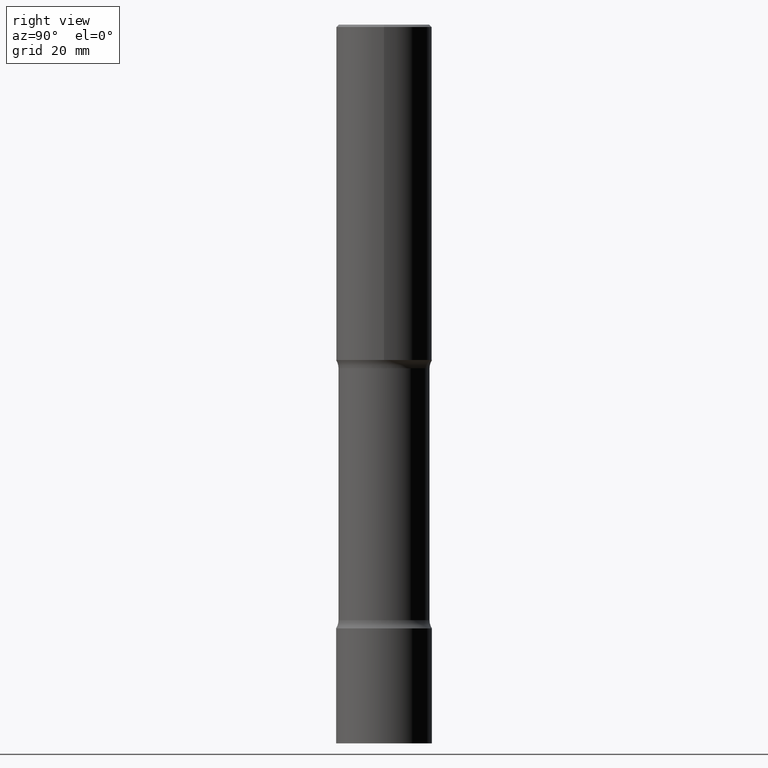
[diagram: clean part render]
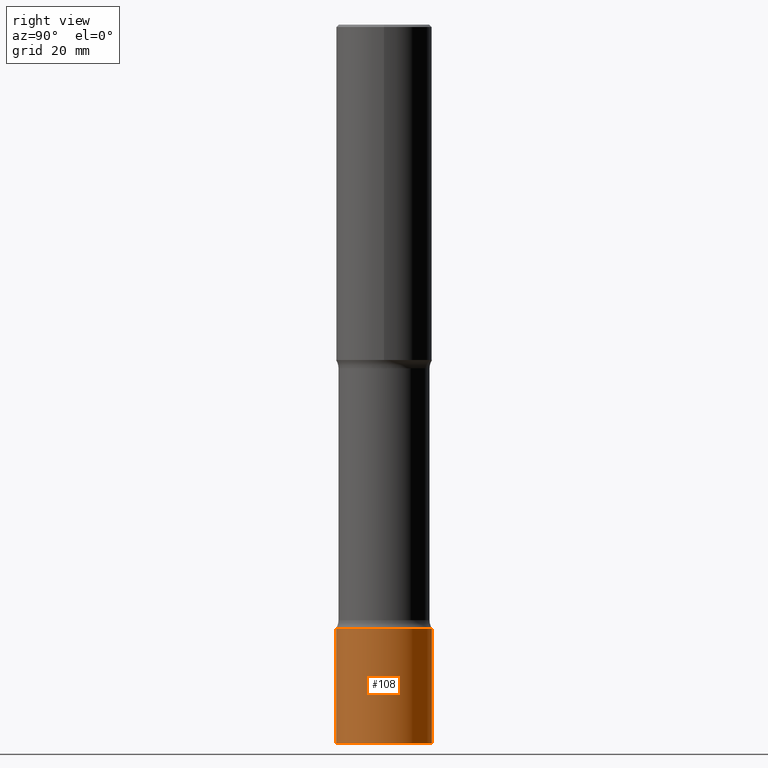
[diagram: same view with one face highlighted and labeled with its STEP entity id]
A machine part, right view. The second image highlights one B-rep face of the part: STEP entity #108.
In plain terms, the highlighted cylindrical surface (partial cylindrical patch) has radius 10 mm, axis along (-0, 0, 1).
Its self-contained STEP definition (entity closure, byte-faithful):
#1 = VERTEX_POINT ( 'NONE', #52 ) ;
#6 = DIRECTION ( 'NONE',  ( -2.445783037014241883E-29, 3.491031342410958513E-15, 1.000000000000000000 ) ) ;
#23 = LINE ( 'NONE', #261, #498 ) ;
#32 = DIRECTION ( 'NONE',  ( -6.982962677686265922E-15, -1.000000000000000000, 3.491031342410958908E-15 ) ) ;
#36 = CARTESIAN_POINT ( 'NONE',  ( 1.444357172508760156E-28, -2.061628559260791379E-14, -5.905499999999999972 ) ) ;
#46 = EDGE_LOOP ( 'NONE', ( #394, #165, #429, #95 ) ) ;
#52 = CARTESIAN_POINT ( 'NONE',  ( -2.749192406204960943E-15, -0.3937000000000173139, -4.960599999999998566 ) ) ;
#73 = DIRECTION ( 'NONE',  ( -2.445783037014241883E-29, 3.491031342410958908E-15, 1.000000000000000000 ) ) ;
#83 = AXIS2_PLACEMENT_3D ( 'NONE', #453, #492, #32 ) ;
#86 = VERTEX_POINT ( 'NONE', #377 ) ;
#90 = CARTESIAN_POINT ( 'NONE',  ( -2.749192406204937672E-15, -0.3937000000000205890, -5.905499999999998195 ) ) ;
#92 = AXIS2_PLACEMENT_3D ( 'NONE', #349, #309, #351 ) ;
#95 = ORIENTED_EDGE ( 'NONE', *, *, #96, .F. ) ;
#96 = EDGE_CURVE ( 'NONE', #442, #1, #23, .T. ) ;
#105 = CARTESIAN_POINT ( 'NONE',  ( 2.797406750687658359E-15, 0.3936999999999826194, -4.960600000000000342 ) ) ;
#108 = ADVANCED_FACE ( 'NONE', ( #256 ), #171, .T. ) ;
#111 = DIRECTION ( 'NONE',  ( -6.982962677686265922E-15, -1.000000000000000000, 2.775563112689117089E-15 ) ) ;
#149 = VECTOR ( 'NONE', #6, 39.37007874015748143 ) ;
#165 = ORIENTED_EDGE ( 'NONE', *, *, #380, .T. ) ;
#171 = CYLINDRICAL_SURFACE ( 'NONE', #83, 0.3936999999999999389 ) ;
#173 = DIRECTION ( 'NONE',  ( -2.445783037014241883E-29, 3.491031342410958513E-15, 1.000000000000000000 ) ) ;
#225 = LINE ( 'NONE', #264, #149 ) ;
#243 = VERTEX_POINT ( 'NONE', #105 ) ;
#256 = FACE_OUTER_BOUND ( 'NONE', #46, .T. ) ;
#261 = CARTESIAN_POINT ( 'NONE',  ( -2.749192406205082428E-15, -0.3936999999999999389, 1.374419039507194384E-15 ) ) ;
#264 = CARTESIAN_POINT ( 'NONE',  ( 2.797406750687513603E-15, 0.3936999999999999389, -1.374419039507194384E-15 ) ) ;
#293 = EDGE_CURVE ( 'NONE', #1, #243, #459, .T. ) ;
#309 = DIRECTION ( 'NONE',  ( -2.445783037014241883E-29, 3.491031342410958908E-15, 1.000000000000000000 ) ) ;
#312 = CIRCLE ( 'NONE', #375, 0.3936999999999999389 ) ;
#349 = CARTESIAN_POINT ( 'NONE',  ( 1.213255133341284668E-28, -1.731761007716380225E-14, -4.960599999999999454 ) ) ;
#351 = DIRECTION ( 'NONE',  ( -6.982962677686265922E-15, -1.000000000000000000, 2.775563112689117089E-15 ) ) ;
#371 = EDGE_CURVE ( 'NONE', #442, #86, #312, .T. ) ;
#375 = AXIS2_PLACEMENT_3D ( 'NONE', #36, #73, #111 ) ;
#377 = CARTESIAN_POINT ( 'NONE',  ( 2.797406750687646526E-15, 0.3936999999999793443, -5.905500000000000860 ) ) ;
#380 = EDGE_CURVE ( 'NONE', #86, #243, #225, .T. ) ;
#394 = ORIENTED_EDGE ( 'NONE', *, *, #371, .T. ) ;
#429 = ORIENTED_EDGE ( 'NONE', *, *, #293, .F. ) ;
#442 = VERTEX_POINT ( 'NONE', #90 ) ;
#453 = CARTESIAN_POINT ( 'NONE',  ( 0.000000000000000000, 0.000000000000000000, 0.000000000000000000 ) ) ;
#459 = CIRCLE ( 'NONE', #92, 0.3936999999999999389 ) ;
#492 = DIRECTION ( 'NONE',  ( -2.445783037014241883E-29, 3.491031342410958908E-15, 1.000000000000000000 ) ) ;
#498 = VECTOR ( 'NONE', #173, 39.37007874015748143 ) ;